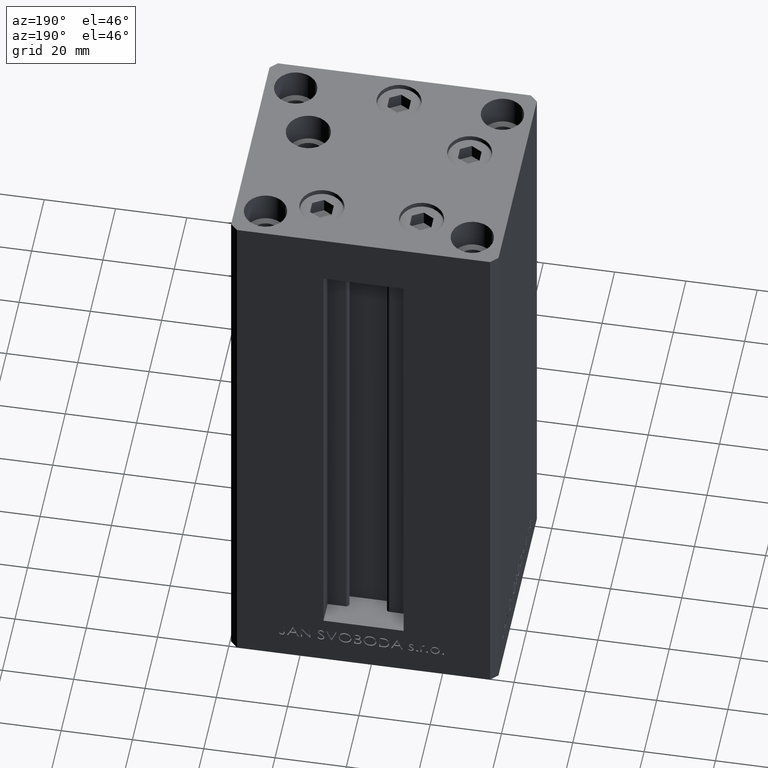
[diagram: clean part render]
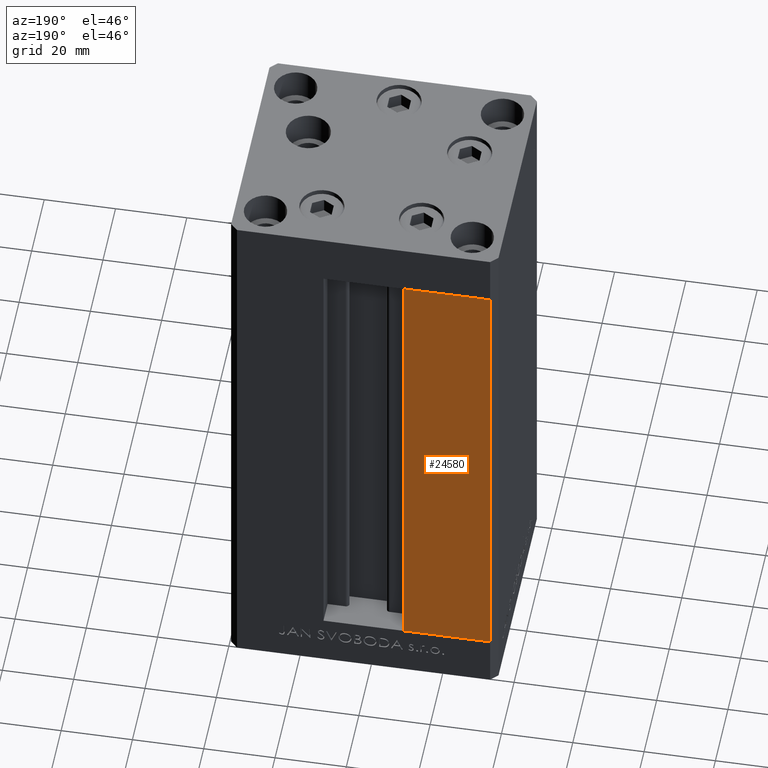
[diagram: same view with one face highlighted and labeled with its STEP entity id]
A machine part, auxiliary view. The second image highlights one B-rep face of the part: STEP entity #24580.
In plain terms, the highlighted planar face has unit normal (0, -1, 0).
Its self-contained STEP definition (entity closure, byte-faithful):
#1572 = EDGE_CURVE ( 'NONE', #36425, #14155, #12466, .T. ) ;
#2630 = CARTESIAN_POINT ( 'NONE',  ( -11.25000000000000178, 32.49999999999999289, 136.0000000000000000 ) ) ;
#4001 = DIRECTION ( 'NONE',  ( -1.000000000000000000, 0.000000000000000000, 0.000000000000000000 ) ) ;
#4116 = LINE ( 'NONE', #12740, #47944 ) ;
#4971 = EDGE_CURVE ( 'NONE', #36425, #9832, #41610, .T. ) ;
#5047 = CARTESIAN_POINT ( 'NONE',  ( -11.25000000000000178, 32.49999999999999289, 0.000000000000000000 ) ) ;
#6763 = VERTEX_POINT ( 'NONE', #34203 ) ;
#7376 = ORIENTED_EDGE ( 'NONE', *, *, #4971, .T. ) ;
#7713 = CARTESIAN_POINT ( 'NONE',  ( -11.25000000000000178, 32.49999999999999289, 0.000000000000000000 ) ) ;
#7866 = DIRECTION ( 'NONE',  ( -0.000000000000000000, -0.000000000000000000, -1.000000000000000000 ) ) ;
#9832 = VERTEX_POINT ( 'NONE', #45628 ) ;
#12387 = VECTOR ( 'NONE', #7866, 1000.000000000000000 ) ;
#12466 = LINE ( 'NONE', #21547, #33986 ) ;
#12740 = CARTESIAN_POINT ( 'NONE',  ( -11.25000000000000178, 32.49999999999999289, 136.0000000000000000 ) ) ;
#13287 = ORIENTED_EDGE ( 'NONE', *, *, #1572, .F. ) ;
#14155 = VERTEX_POINT ( 'NONE', #2630 ) ;
#16925 = ORIENTED_EDGE ( 'NONE', *, *, #36178, .F. ) ;
#18485 = EDGE_LOOP ( 'NONE', ( #30421, #13287, #7376, #16925 ) ) ;
#18753 = CARTESIAN_POINT ( 'NONE',  ( -35.50000000000000000, 32.49999999999999289, 136.0000000000000000 ) ) ;
#21547 = CARTESIAN_POINT ( 'NONE',  ( -11.25000000000000178, 32.49999999999999289, 0.000000000000000000 ) ) ;
#23817 = VECTOR ( 'NONE', #4001, 1000.000000000000000 ) ;
#24580 = ADVANCED_FACE ( 'NONE', ( #36211 ), #36455, .F. ) ;
#27587 = DIRECTION ( 'NONE',  ( -0.000000000000000000, -0.000000000000000000, 1.000000000000000000 ) ) ;
#28798 = DIRECTION ( 'NONE',  ( 0.000000000000000000, -0.000000000000000000, -1.000000000000000000 ) ) ;
#30421 = ORIENTED_EDGE ( 'NONE', *, *, #48294, .T. ) ;
#32508 = DIRECTION ( 'NONE',  ( 0.000000000000000000, -1.000000000000000000, 0.000000000000000000 ) ) ;
#33986 = VECTOR ( 'NONE', #27587, 1000.000000000000000 ) ;
#34203 = CARTESIAN_POINT ( 'NONE',  ( -35.50000000000000000, 32.49999999999999289, 136.0000000000000000 ) ) ;
#34807 = DIRECTION ( 'NONE',  ( 1.000000000000000000, 0.000000000000000000, 0.000000000000000000 ) ) ;
#36178 = EDGE_CURVE ( 'NONE', #6763, #9832, #41764, .T. ) ;
#36211 = FACE_OUTER_BOUND ( 'NONE', #18485, .T. ) ;
#36425 = VERTEX_POINT ( 'NONE', #5047 ) ;
#36455 = PLANE ( 'NONE',  #44535 ) ;
#41610 = LINE ( 'NONE', #7713, #23817 ) ;
#41764 = LINE ( 'NONE', #18753, #12387 ) ;
#43126 = CARTESIAN_POINT ( 'NONE',  ( -11.25000000000000178, 32.49999999999999289, 136.0000000000000000 ) ) ;
#44535 = AXIS2_PLACEMENT_3D ( 'NONE', #43126, #32508, #28798 ) ;
#45628 = CARTESIAN_POINT ( 'NONE',  ( -35.50000000000000000, 32.49999999999999289, 0.000000000000000000 ) ) ;
#47944 = VECTOR ( 'NONE', #34807, 1000.000000000000000 ) ;
#48294 = EDGE_CURVE ( 'NONE', #6763, #14155, #4116, .T. ) ;